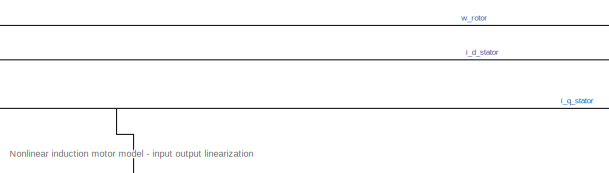
[diagram: root canvas - part 1/3, top center region]
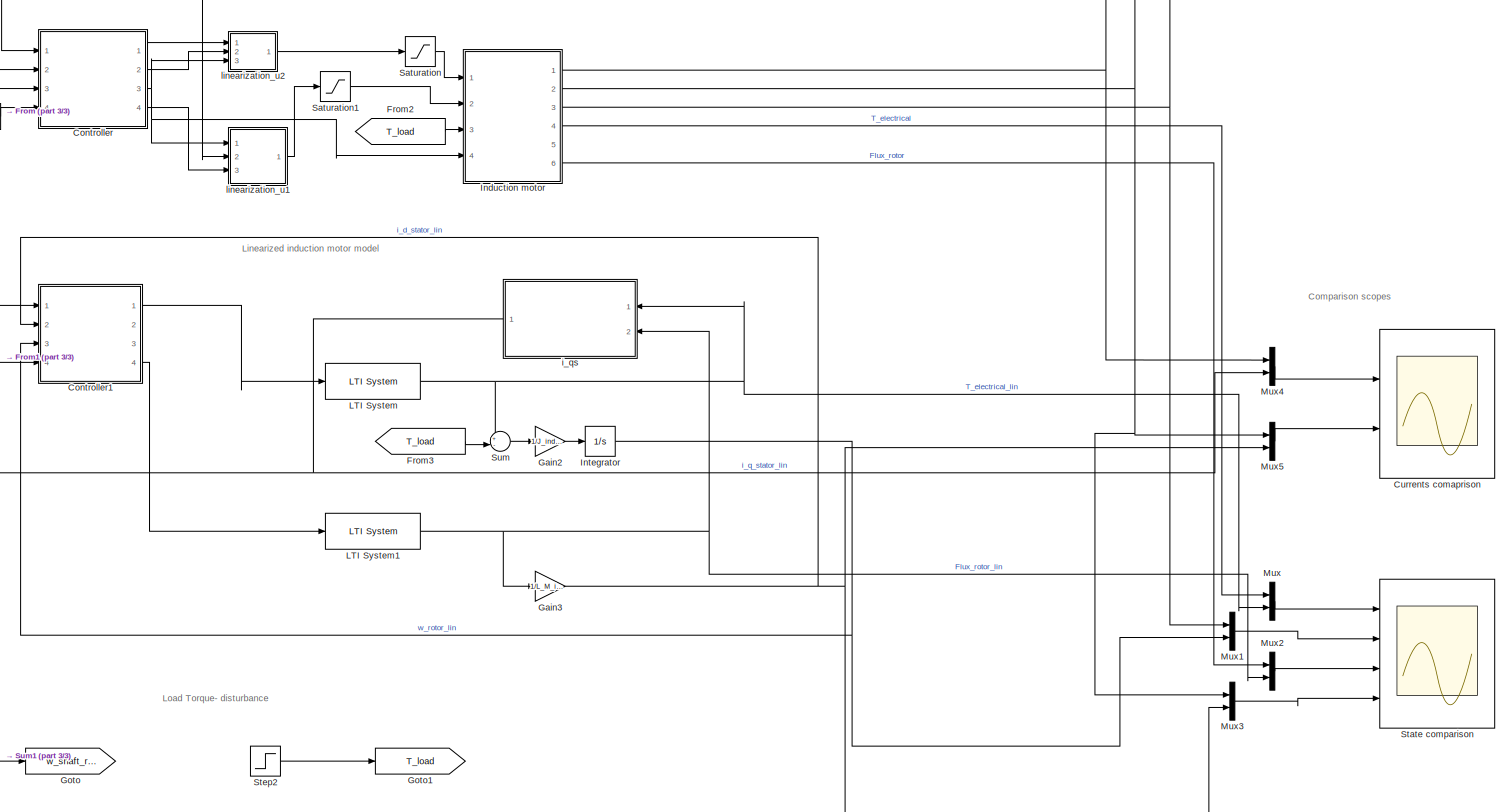
[diagram: root canvas - part 2/3, most of the canvas]
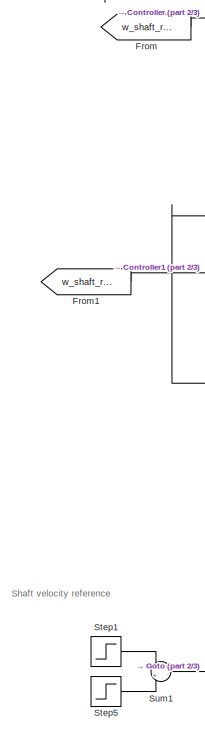
[diagram: root canvas - part 3/3, middle left region]
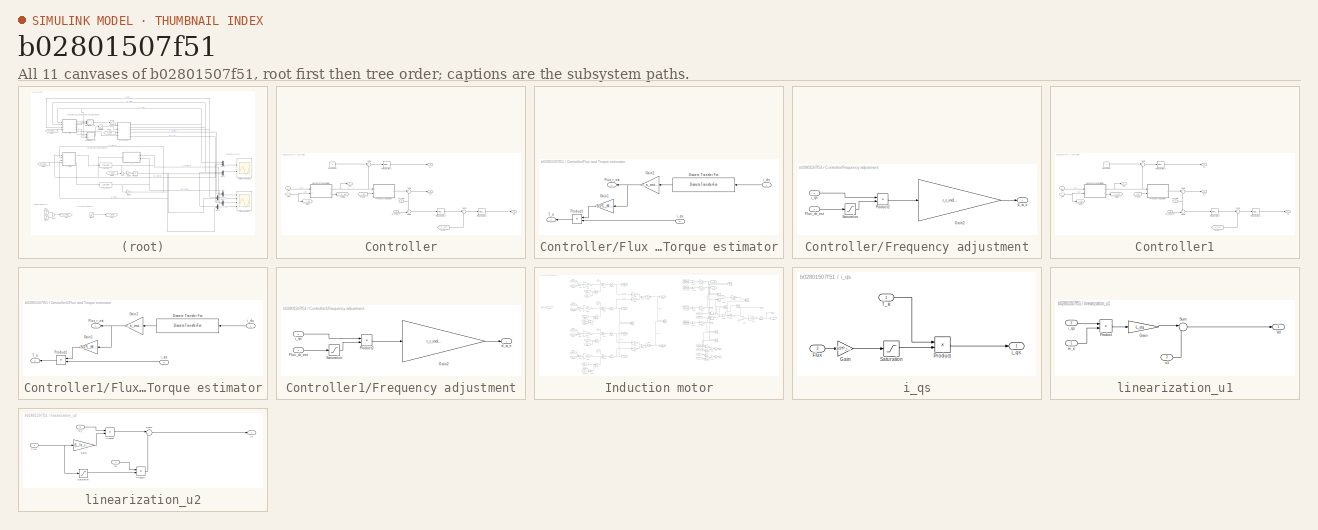
[diagram: thumbnail index - all 11 canvases of the model, root first then tree order]
MODEL slx_b02801507f51
KIND model
CONFIG AbsTol = auto
CONFIG EnableMultiTasking = off
CONFIG FixedStep = 1e-3
CONFIG MaxStep = auto
CONFIG MinStep = auto
CONFIG RelTol = 1e-3
CONFIG SampleTimeConstraint = Unconstrained
CONFIG Solver = FixedStepAuto
CONFIG SolverName = FixedStepAuto
CONFIG StartTime = 0.0
CONFIG StopTime = 200
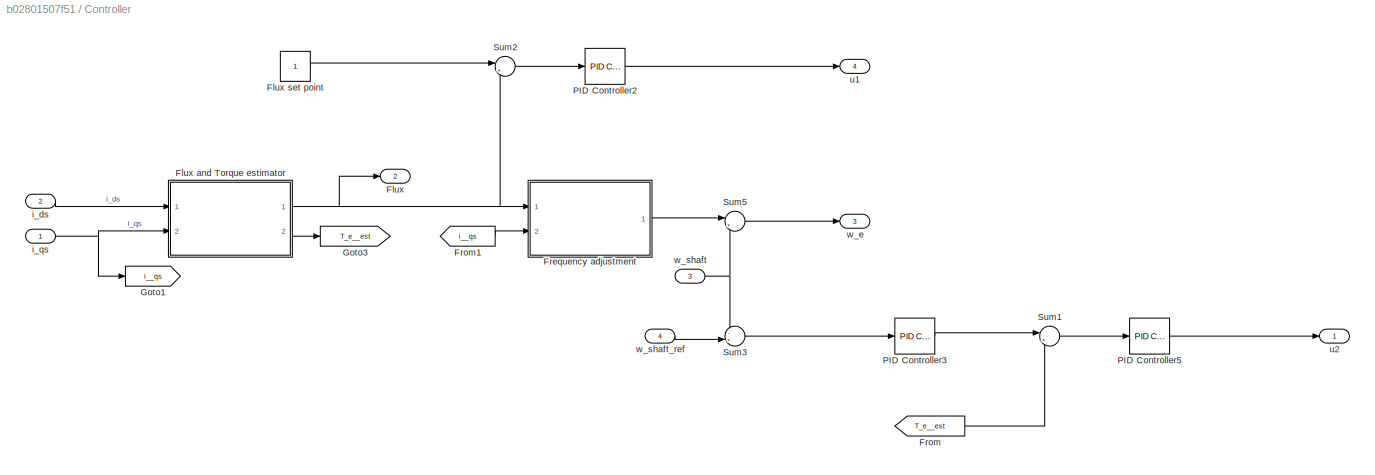
BLOCK [SubSystem] Controller
  Ports = [4, 4]
  RequestExecContextInheritance = off
  Variant = off
BLOCK [Outport] Controller/Flux
  IconDisplay = Port number
  Port = 2
BLOCK [SubSystem] Controller/Flux and Torque estimator
  Ports = [2, 2]
  RequestExecContextInheritance = off
  Variant = off
BLOCK [DiscreteTransferFcn] Controller/Flux and Torque estimator/Discrete Transfer Fcn
  Denominator = [(2*T_r_ind+T_s_est) (T_s_est-2*T_r_ind)]
  InputPortMap = u0
  Numerator = [1 1]
  Ports = [1, 1]
  SampleTime = T_s_est
BLOCK [Outport] Controller/Flux and Torque estimator/Flux_r_est
  IconDisplay = Port number
BLOCK [Gain] Controller/Flux and Torque estimator/Gain1
  Gain = 3/2*L_M_ind/L_lr_ind*P_ind
  OutDataTypeStr = Inherit: Inherit via internal rule
  ParamDataTypeStr = Inherit: Inherit via internal rule
  SaturateOnIntegerOverflow = off
BLOCK [Gain] Controller/Flux and Torque estimator/Gain2
  Gain = T_s_est*L_M_ind
  OutDataTypeStr = Inherit: Inherit via internal rule
  ParamDataTypeStr = Inherit: Inherit via internal rule
  SaturateOnIntegerOverflow = off
BLOCK [Product] Controller/Flux and Torque estimator/Product1
  InputSameDT = off
  OutDataTypeStr = Inherit: Inherit via internal rule
  Ports = [2, 1]
  RndMeth = Floor
  SaturateOnIntegerOverflow = off
BLOCK [Outport] Controller/Flux and Torque estimator/T_e
  IconDisplay = Port number
  Port = 2
BLOCK [Inport] Controller/Flux and Torque estimator/i_ds
  IconDisplay = Port number
BLOCK [Inport] Controller/Flux and Torque estimator/i_qs
  IconDisplay = Port number
  Port = 2
BLOCK [Constant] Controller/Flux set point
BLOCK [SubSystem] Controller/Frequency adjustment
  Ports = [2, 1]
  RequestExecContextInheritance = off
  Variant = off
BLOCK [Inport] Controller/Frequency adjustment/Flux_dr_est
  IconDisplay = Port number
BLOCK [Gain] Controller/Frequency adjustment/Gain2
  Gain = r_r_ind*L_M_ind/(L_M_ind+L_lr_ind)
  OutDataTypeStr = Inherit: Inherit via internal rule
  ParamDataTypeStr = Inherit: Inherit via internal rule
  SaturateOnIntegerOverflow = off
BLOCK [Product] Controller/Frequency adjustment/Product2
  InputSameDT = off
  Inputs = */
  OutDataTypeStr = Inherit: Inherit via internal rule
  Ports = [2, 1]
  RndMeth = Floor
  SaturateOnIntegerOverflow = off
BLOCK [Saturate] Controller/Frequency adjustment/Saturation
  InputPortMap = u0
  LowerLimit = 1e-5
  Ports = [1, 1]
  UpperLimit = inf
BLOCK [Outport] Controller/Frequency adjustment/d_w_e
  IconDisplay = Port number
BLOCK [Inport] Controller/Frequency adjustment/i_qs
  IconDisplay = Port number
  Port = 2
BLOCK [From] Controller/From
  GotoTag = T_e__est
BLOCK [From] Controller/From1
  GotoTag = i__qs
BLOCK [Goto] Controller/Goto1
  GotoTag = i__qs
BLOCK [Goto] Controller/Goto3
  GotoTag = T_e__est
BLOCK [Reference] Controller/PID Controller2  REF=simulink/Continuous/PID Controller
  Ports = [1, 1]
  SourceBlock = simulink/Continuous/PID Controller
  SourceProductBaseCode = SL
  SourceProductName = Simulink
  SourceType = PID 1dof
BLOCK [Reference] Controller/PID Controller3  REF=simulink/Continuous/PID Controller
  Ports = [1, 1]
  SourceBlock = simulink/Continuous/PID Controller
  SourceProductBaseCode = SL
  SourceProductName = Simulink
  SourceType = PID 1dof
BLOCK [Reference] Controller/PID Controller5  REF=simulink/Continuous/PID Controller
  Ports = [1, 1]
  SourceBlock = simulink/Continuous/PID Controller
  SourceProductBaseCode = SL
  SourceProductName = Simulink
  SourceType = PID 1dof
BLOCK [Sum] Controller/Sum1
  IconShape = round
  InputSameDT = off
  Inputs = |+-
  OutDataTypeStr = Inherit: Inherit via internal rule
  Ports = [2, 1]
  SaturateOnIntegerOverflow = off
BLOCK [Sum] Controller/Sum2
  IconShape = round
  InputSameDT = off
  Inputs = |+-
  OutDataTypeStr = Inherit: Inherit via internal rule
  Ports = [2, 1]
  SaturateOnIntegerOverflow = off
BLOCK [Sum] Controller/Sum3
  IconShape = round
  InputSameDT = off
  Inputs = -+|
  OutDataTypeStr = Inherit: Inherit via internal rule
  Ports = [2, 1]
  SaturateOnIntegerOverflow = off
BLOCK [Sum] Controller/Sum5
  IconShape = round
  InputSameDT = off
  Inputs = |++
  OutDataTypeStr = Inherit: Inherit via internal rule
  Ports = [2, 1]
  SaturateOnIntegerOverflow = off
BLOCK [Inport] Controller/i_ds
  IconDisplay = Port number
  Port = 2
BLOCK [Inport] Controller/i_qs
  IconDisplay = Port number
BLOCK [Outport] Controller/u1
  IconDisplay = Port number
  Port = 4
BLOCK [Outport] Controller/u2
  IconDisplay = Port number
BLOCK [Outport] Controller/w_e
  IconDisplay = Port number
  Port = 3
BLOCK [Inport] Controller/w_shaft
  IconDisplay = Port number
  Port = 3
BLOCK [Inport] Controller/w_shaft_ref
  IconDisplay = Port number
  Port = 4
BLOCK [SubSystem] Controller1
  Ports = [4, 4]
  RequestExecContextInheritance = off
  Variant = off
BLOCK [Outport] Controller1/Flux
  IconDisplay = Port number
  Port = 2
BLOCK [SubSystem] Controller1/Flux and Torque estimator
  Ports = [2, 2]
  RequestExecContextInheritance = off
  Variant = off
BLOCK [DiscreteTransferFcn] Controller1/Flux and Torque estimator/Discrete Transfer Fcn
  Denominator = [(2*T_r_ind+T_s_est) (T_s_est-2*T_r_ind)]
  InputPortMap = u0
  Numerator = [1 1]
  Ports = [1, 1]
  SampleTime = T_s_est
BLOCK [Outport] Controller1/Flux and Torque estimator/Flux_r_est
  IconDisplay = Port number
BLOCK [Gain] Controller1/Flux and Torque estimator/Gain1
  Gain = 3/2*L_M_ind/L_lr_ind*P_ind
  OutDataTypeStr = Inherit: Inherit via internal rule
  ParamDataTypeStr = Inherit: Inherit via internal rule
  SaturateOnIntegerOverflow = off
BLOCK [Gain] Controller1/Flux and Torque estimator/Gain2
  Gain = T_s_est*L_M_ind
  OutDataTypeStr = Inherit: Inherit via internal rule
  ParamDataTypeStr = Inherit: Inherit via internal rule
  SaturateOnIntegerOverflow = off
BLOCK [Product] Controller1/Flux and Torque estimator/Product1
  InputSameDT = off
  OutDataTypeStr = Inherit: Inherit via internal rule
  Ports = [2, 1]
  RndMeth = Floor
  SaturateOnIntegerOverflow = off
BLOCK [Outport] Controller1/Flux and Torque estimator/T_e
  IconDisplay = Port number
  Port = 2
BLOCK [Inport] Controller1/Flux and Torque estimator/i_ds
  IconDisplay = Port number
BLOCK [Inport] Controller1/Flux and Torque estimator/i_qs
  IconDisplay = Port number
  Port = 2
BLOCK [Constant] Controller1/Flux set point
BLOCK [SubSystem] Controller1/Frequency adjustment
  Ports = [2, 1]
  RequestExecContextInheritance = off
  Variant = off
BLOCK [Inport] Controller1/Frequency adjustment/Flux_dr_est
  IconDisplay = Port number
BLOCK [Gain] Controller1/Frequency adjustment/Gain2
  Gain = r_r_ind*L_M_ind/(L_M_ind+L_lr_ind)
  OutDataTypeStr = Inherit: Inherit via internal rule
  ParamDataTypeStr = Inherit: Inherit via internal rule
  SaturateOnIntegerOverflow = off
BLOCK [Product] Controller1/Frequency adjustment/Product2
  InputSameDT = off
  Inputs = */
  OutDataTypeStr = Inherit: Inherit via internal rule
  Ports = [2, 1]
  RndMeth = Floor
  SaturateOnIntegerOverflow = off
BLOCK [Saturate] Controller1/Frequency adjustment/Saturation
  InputPortMap = u0
  LowerLimit = 1e-5
  Ports = [1, 1]
  UpperLimit = inf
BLOCK [Outport] Controller1/Frequency adjustment/d_w_e
  IconDisplay = Port number
BLOCK [Inport] Controller1/Frequency adjustment/i_qs
  IconDisplay = Port number
  Port = 2
BLOCK [From] Controller1/From
  GotoTag = T_e_est
BLOCK [From] Controller1/From1
  GotoTag = i_qs
BLOCK [Goto] Controller1/Goto1
  GotoTag = i_qs
BLOCK [Goto] Controller1/Goto3
  GotoTag = T_e_est
BLOCK [Reference] Controller1/PID Controller2  REF=simulink/Continuous/PID Controller
  Ports = [1, 1]
  SourceBlock = simulink/Continuous/PID Controller
  SourceProductBaseCode = SL
  SourceProductName = Simulink
  SourceType = PID 1dof
BLOCK [Reference] Controller1/PID Controller3  REF=simulink/Continuous/PID Controller
  Ports = [1, 1]
  SourceBlock = simulink/Continuous/PID Controller
  SourceProductBaseCode = SL
  SourceProductName = Simulink
  SourceType = PID 1dof
BLOCK [Reference] Controller1/PID Controller5  REF=simulink/Continuous/PID Controller
  Ports = [1, 1]
  SourceBlock = simulink/Continuous/PID Controller
  SourceProductBaseCode = SL
  SourceProductName = Simulink
  SourceType = PID 1dof
BLOCK [Sum] Controller1/Sum1
  IconShape = round
  InputSameDT = off
  Inputs = |+-
  OutDataTypeStr = Inherit: Inherit via internal rule
  Ports = [2, 1]
  SaturateOnIntegerOverflow = off
BLOCK [Sum] Controller1/Sum2
  IconShape = round
  InputSameDT = off
  Inputs = |+-
  OutDataTypeStr = Inherit: Inherit via internal rule
  Ports = [2, 1]
  SaturateOnIntegerOverflow = off
BLOCK [Sum] Controller1/Sum3
  IconShape = round
  InputSameDT = off
  Inputs = -+|
  OutDataTypeStr = Inherit: Inherit via internal rule
  Ports = [2, 1]
  SaturateOnIntegerOverflow = off
BLOCK [Sum] Controller1/Sum5
  IconShape = round
  InputSameDT = off
  Inputs = |++
  OutDataTypeStr = Inherit: Inherit via internal rule
  Ports = [2, 1]
  SaturateOnIntegerOverflow = off
BLOCK [Inport] Controller1/i_ds
  IconDisplay = Port number
  Port = 2
BLOCK [Inport] Controller1/i_qs
  IconDisplay = Port number
BLOCK [Outport] Controller1/u1
  IconDisplay = Port number
  Port = 4
BLOCK [Outport] Controller1/u2
  IconDisplay = Port number
BLOCK [Outport] Controller1/w_e
  IconDisplay = Port number
  Port = 3
BLOCK [Inport] Controller1/w_shaft
  IconDisplay = Port number
  Port = 3
BLOCK [Inport] Controller1/w_shaft_ref
  IconDisplay = Port number
  Port = 4
BLOCK [Scope] Currents comaprison
  NumInputPorts = 2
  Ports = [2]
  ScopeSpecificationString = Simulink.scopes.TimeScopeBlockCfg('CurrentConfiguration', extmgr.ConfigurationSet(extmgr.Configuration('Core','General UI',true),extmgr.Configuration('Core','Source UI',true),extmgr.Configuration('Sources','WiredSimulink',true),extmgr.Configuration('Visuals','Time Domain',true,'SerializedDisplays',{struct('MinYLimReal','-2.41881','MaxYLimReal','17.90524','YLabelReal','','MinYLimMag','0.00000','Max...<+2008ch>
BLOCK [From] From
  GotoTag = w_shaft_ref
BLOCK [From] From1
  GotoTag = w_shaft_ref
BLOCK [From] From2
  GotoTag = T_load
BLOCK [From] From3
  GotoTag = T_load
BLOCK [Gain] Gain2
  Gain = 1/J_ind*P_ind/2
  OutDataTypeStr = Inherit: Inherit via internal rule
  ParamDataTypeStr = Inherit: Inherit via internal rule
  SaturateOnIntegerOverflow = off
BLOCK [Gain] Gain3
  Gain = 1/L_M_ind
  OutDataTypeStr = Inherit: Inherit via internal rule
  ParamDataTypeStr = Inherit: Inherit via internal rule
  SaturateOnIntegerOverflow = off
BLOCK [Goto] Goto
  GotoTag = w_shaft_ref
BLOCK [Goto] Goto1
  GotoTag = T_load
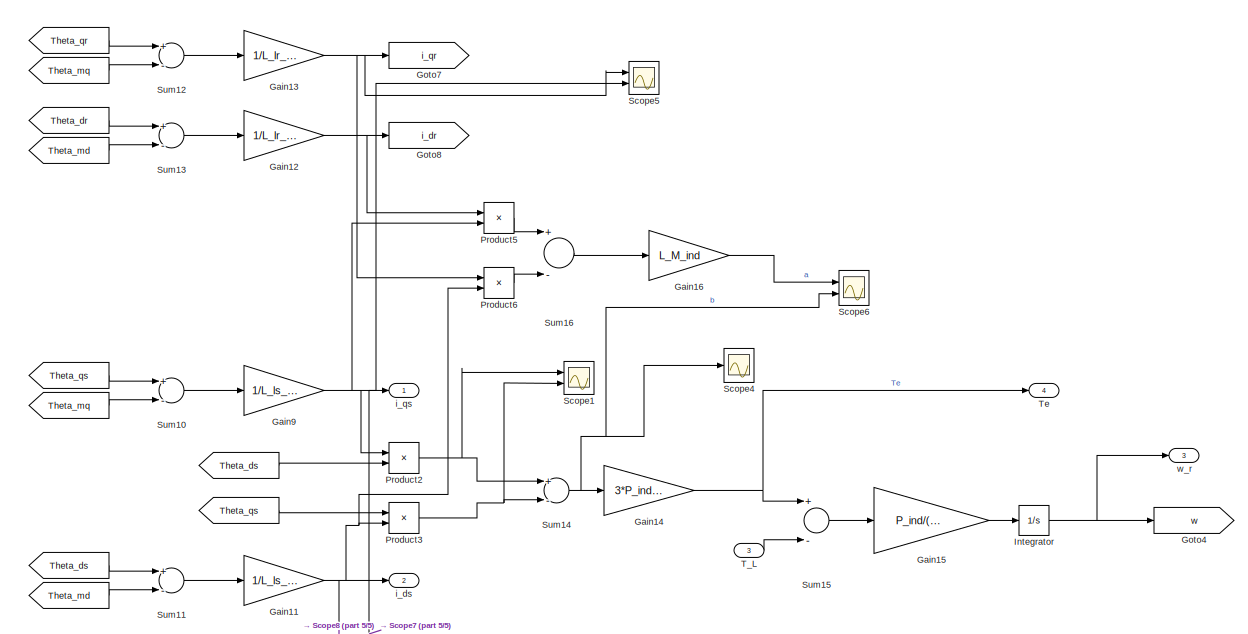
[diagram: Induction motor - part 1/5, top right region]
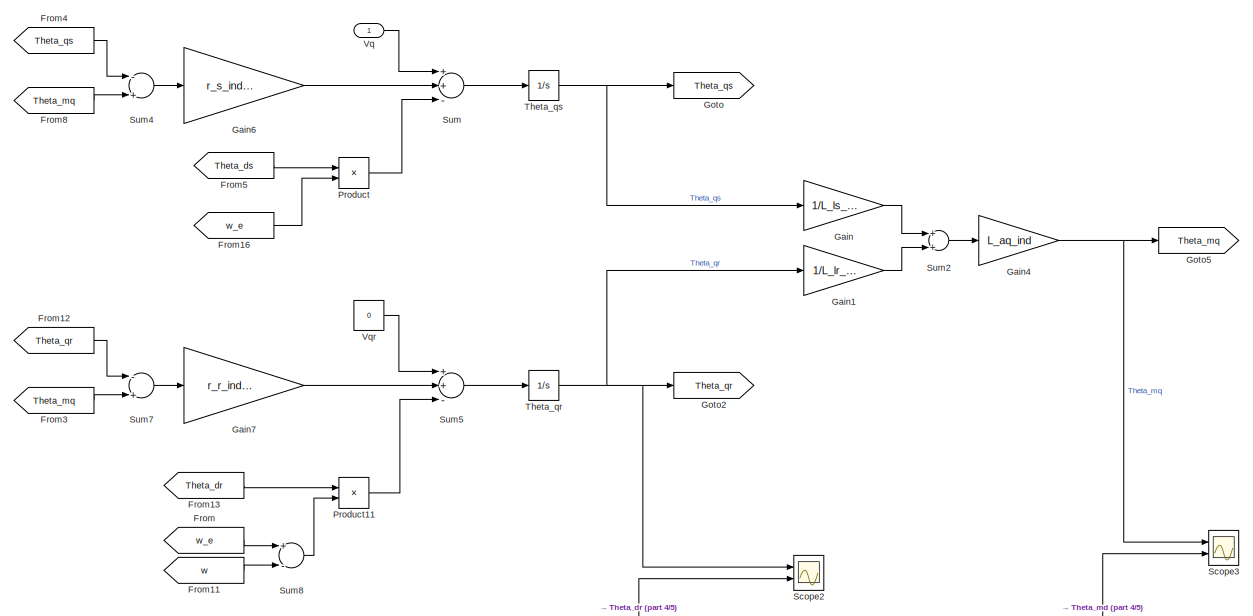
[diagram: Induction motor - part 2/5, top left region]
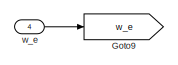
[diagram: Induction motor - part 3/5, top left region]
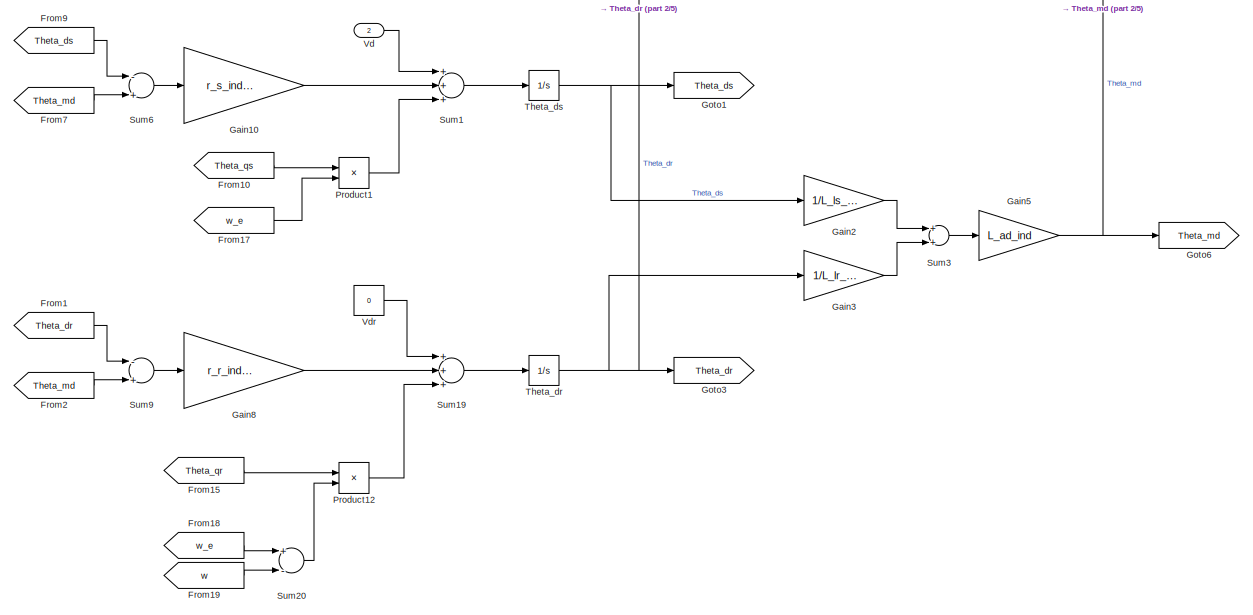
[diagram: Induction motor - part 4/5, bottom left region]
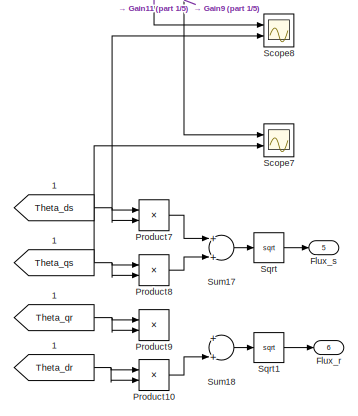
[diagram: Induction motor - part 5/5, bottom right region]
BLOCK [SubSystem] Induction motor
  Ports = [4, 6]
  RequestExecContextInheritance = off
  Variant = off
BLOCK [From] Induction motor/ 
  GotoTag = Theta_ds
BLOCK [From] Induction motor/  
  GotoTag = Theta_mq
BLOCK [From] Induction motor/   
  GotoTag = Theta_qs
BLOCK [From] Induction motor/    
  GotoTag = Theta_dr
BLOCK [From] Induction motor/     
  GotoTag = Theta_md
BLOCK [From] Induction motor/         
  GotoTag = Theta_md
BLOCK [From] Induction motor/          
  GotoTag = Theta_qr
BLOCK [From] Induction motor/            
  GotoTag = Theta_mq
BLOCK [From] Induction motor/                   
  GotoTag = Theta_qs
BLOCK [From] Induction motor/                         
  GotoTag = Theta_ds
BLOCK [From] Induction motor/          1
  GotoTag = Theta_qr
BLOCK [From] Induction motor/    1
  GotoTag = Theta_dr
BLOCK [From] Induction motor/   1
  GotoTag = Theta_qs
BLOCK [From] Induction motor/ 1
  GotoTag = Theta_ds
BLOCK [Outport] Induction motor/Flux_r
  IconDisplay = Port number
  Port = 6
BLOCK [Outport] Induction motor/Flux_s
  IconDisplay = Port number
  Port = 5
BLOCK [From] Induction motor/From
  GotoTag = w_e
BLOCK [From] Induction motor/From1
  GotoTag = Theta_dr
BLOCK [From] Induction motor/From10
  GotoTag = Theta_qs
BLOCK [From] Induction motor/From11
  GotoTag = w
BLOCK [From] Induction motor/From12
  GotoTag = Theta_qr
BLOCK [From] Induction motor/From13
  GotoTag = Theta_dr
BLOCK [From] Induction motor/From15
  GotoTag = Theta_qr
BLOCK [From] Induction motor/From16
  GotoTag = w_e
BLOCK [From] Induction motor/From17
  GotoTag = w_e
BLOCK [From] Induction motor/From18
  GotoTag = w_e
BLOCK [From] Induction motor/From19
  GotoTag = w
BLOCK [From] Induction motor/From2
  GotoTag = Theta_md
BLOCK [From] Induction motor/From3
  GotoTag = Theta_mq
BLOCK [From] Induction motor/From4
  GotoTag = Theta_qs
BLOCK [From] Induction motor/From5
  GotoTag = Theta_ds
BLOCK [From] Induction motor/From7
  GotoTag = Theta_md
BLOCK [From] Induction motor/From8
  GotoTag = Theta_mq
BLOCK [From] Induction motor/From9
  GotoTag = Theta_ds
BLOCK [Gain] Induction motor/Gain
  Gain = 1/L_ls_ind
  OutDataTypeStr = Inherit: Inherit via internal rule
  ParamDataTypeStr = Inherit: Inherit via internal rule
  SaturateOnIntegerOverflow = off
BLOCK [Gain] Induction motor/Gain1
  Gain = 1/L_lr_ind
  OutDataTypeStr = Inherit: Inherit via internal rule
  ParamDataTypeStr = Inherit: Inherit via internal rule
  SaturateOnIntegerOverflow = off
BLOCK [Gain] Induction motor/Gain10
  Gain = r_s_ind/L_ls_ind
  OutDataTypeStr = Inherit: Inherit via internal rule
  ParamDataTypeStr = Inherit: Inherit via internal rule
  SaturateOnIntegerOverflow = off
BLOCK [Gain] Induction motor/Gain11
  Gain = 1/L_ls_ind
  OutDataTypeStr = Inherit: Inherit via internal rule
  ParamDataTypeStr = Inherit: Inherit via internal rule
  SaturateOnIntegerOverflow = off
BLOCK [Gain] Induction motor/Gain12
  Gain = 1/L_lr_ind
  OutDataTypeStr = Inherit: Inherit via internal rule
  ParamDataTypeStr = Inherit: Inherit via internal rule
  SaturateOnIntegerOverflow = off
BLOCK [Gain] Induction motor/Gain13
  Gain = 1/L_lr_ind
  OutDataTypeStr = Inherit: Inherit via internal rule
  ParamDataTypeStr = Inherit: Inherit via internal rule
  SaturateOnIntegerOverflow = off
BLOCK [Gain] Induction motor/Gain14
  Gain = 3*P_ind/4
  OutDataTypeStr = Inherit: Inherit via internal rule
  ParamDataTypeStr = Inherit: Inherit via internal rule
  SaturateOnIntegerOverflow = off
BLOCK [Gain] Induction motor/Gain15
  Gain = P_ind/(2*J_ind)
  OutDataTypeStr = Inherit: Inherit via internal rule
  ParamDataTypeStr = Inherit: Inherit via internal rule
  SaturateOnIntegerOverflow = off
BLOCK [Gain] Induction motor/Gain16
  Gain = L_M_ind
  OutDataTypeStr = Inherit: Inherit via internal rule
  ParamDataTypeStr = Inherit: Inherit via internal rule
  SaturateOnIntegerOverflow = off
BLOCK [Gain] Induction motor/Gain2
  Gain = 1/L_ls_ind
  OutDataTypeStr = Inherit: Inherit via internal rule
  ParamDataTypeStr = Inherit: Inherit via internal rule
  SaturateOnIntegerOverflow = off
BLOCK [Gain] Induction motor/Gain3
  Gain = 1/L_lr_ind
  OutDataTypeStr = Inherit: Inherit via internal rule
  ParamDataTypeStr = Inherit: Inherit via internal rule
  SaturateOnIntegerOverflow = off
BLOCK [Gain] Induction motor/Gain4
  Gain = L_aq_ind
  OutDataTypeStr = Inherit: Inherit via internal rule
  ParamDataTypeStr = Inherit: Inherit via internal rule
  SaturateOnIntegerOverflow = off
BLOCK [Gain] Induction motor/Gain5
  Gain = L_ad_ind
  OutDataTypeStr = Inherit: Inherit via internal rule
  ParamDataTypeStr = Inherit: Inherit via internal rule
  SaturateOnIntegerOverflow = off
BLOCK [Gain] Induction motor/Gain6
  Gain = r_s_ind/L_ls_ind
  OutDataTypeStr = Inherit: Inherit via internal rule
  ParamDataTypeStr = Inherit: Inherit via internal rule
  SaturateOnIntegerOverflow = off
BLOCK [Gain] Induction motor/Gain7
  Gain = r_r_ind/L_lr_ind
  OutDataTypeStr = Inherit: Inherit via internal rule
  ParamDataTypeStr = Inherit: Inherit via internal rule
  SaturateOnIntegerOverflow = off
BLOCK [Gain] Induction motor/Gain8
  Gain = r_r_ind/L_lr_ind
  OutDataTypeStr = Inherit: Inherit via internal rule
  ParamDataTypeStr = Inherit: Inherit via internal rule
  SaturateOnIntegerOverflow = off
BLOCK [Gain] Induction motor/Gain9
  Gain = 1/L_ls_ind
  OutDataTypeStr = Inherit: Inherit via internal rule
  ParamDataTypeStr = Inherit: Inherit via internal rule
  SaturateOnIntegerOverflow = off
BLOCK [Goto] Induction motor/Goto
  GotoTag = Theta_qs
BLOCK [Goto] Induction motor/Goto1
  GotoTag = Theta_ds
BLOCK [Goto] Induction motor/Goto2
  GotoTag = Theta_qr
BLOCK [Goto] Induction motor/Goto3
  GotoTag = Theta_dr
BLOCK [Goto] Induction motor/Goto4
  GotoTag = w
BLOCK [Goto] Induction motor/Goto5
  GotoTag = Theta_mq
BLOCK [Goto] Induction motor/Goto6
  GotoTag = Theta_md
BLOCK [Goto] Induction motor/Goto7
  GotoTag = i_qr
BLOCK [Goto] Induction motor/Goto8
  GotoTag = i_dr
BLOCK [Goto] Induction motor/Goto9
  GotoTag = w_e
BLOCK [Integrator] Induction motor/Integrator
  Ports = [1, 1]
BLOCK [Product] Induction motor/Product
  InputSameDT = off
  OutDataTypeStr = Inherit: Inherit via internal rule
  Ports = [2, 1]
  RndMeth = Floor
  SaturateOnIntegerOverflow = off
BLOCK [Product] Induction motor/Product1
  InputSameDT = off
  OutDataTypeStr = Inherit: Inherit via internal rule
  Ports = [2, 1]
  RndMeth = Floor
  SaturateOnIntegerOverflow = off
BLOCK [Product] Induction motor/Product10
  InputSameDT = off
  OutDataTypeStr = Inherit: Inherit via internal rule
  Ports = [2, 1]
  RndMeth = Floor
  SaturateOnIntegerOverflow = off
BLOCK [Product] Induction motor/Product11
  InputSameDT = off
  OutDataTypeStr = Inherit: Inherit via internal rule
  Ports = [2, 1]
  RndMeth = Floor
  SaturateOnIntegerOverflow = off
BLOCK [Product] Induction motor/Product12
  InputSameDT = off
  OutDataTypeStr = Inherit: Inherit via internal rule
  Ports = [2, 1]
  RndMeth = Floor
  SaturateOnIntegerOverflow = off
BLOCK [Product] Induction motor/Product2
  InputSameDT = off
  OutDataTypeStr = Inherit: Inherit via internal rule
  Ports = [2, 1]
  RndMeth = Floor
  SaturateOnIntegerOverflow = off
BLOCK [Product] Induction motor/Product3
  InputSameDT = off
  OutDataTypeStr = Inherit: Inherit via internal rule
  Ports = [2, 1]
  RndMeth = Floor
  SaturateOnIntegerOverflow = off
BLOCK [Product] Induction motor/Product5
  InputSameDT = off
  OutDataTypeStr = Inherit: Inherit via internal rule
  Ports = [2, 1]
  RndMeth = Floor
  SaturateOnIntegerOverflow = off
BLOCK [Product] Induction motor/Product6
  InputSameDT = off
  OutDataTypeStr = Inherit: Inherit via internal rule
  Ports = [2, 1]
  RndMeth = Floor
  SaturateOnIntegerOverflow = off
BLOCK [Product] Induction motor/Product7
  InputSameDT = off
  OutDataTypeStr = Inherit: Inherit via internal rule
  Ports = [2, 1]
  RndMeth = Floor
  SaturateOnIntegerOverflow = off
BLOCK [Product] Induction motor/Product8
  InputSameDT = off
  OutDataTypeStr = Inherit: Inherit via internal rule
  Ports = [2, 1]
  RndMeth = Floor
  SaturateOnIntegerOverflow = off
BLOCK [Product] Induction motor/Product9
  InputSameDT = off
  OutDataTypeStr = Inherit: Inherit via internal rule
  Ports = [2, 1]
  RndMeth = Floor
  SaturateOnIntegerOverflow = off
BLOCK [Scope] Induction motor/Scope1
  NumInputPorts = 2
  Ports = [2]
  ScopeSpecificationString = Simulink.scopes.TimeScopeBlockCfg('CurrentConfiguration', extmgr.ConfigurationSet(extmgr.Configuration('Core','General UI',true),extmgr.Configuration('Core','Source UI',true),extmgr.Configuration('Sources','WiredSimulink',true,'DataLoggingVariableName','ScopeData4'),extmgr.Configuration('Visuals','Time Domain',true,'SerializedDisplays',{struct('MinYLimReal','-1215.52055','MaxYLimReal','9002.37036'...<+1508ch>
BLOCK [Scope] Induction motor/Scope2
  NumInputPorts = 2
  Ports = [2]
  ScopeSpecificationString = Simulink.scopes.TimeScopeBlockCfg('CurrentConfiguration', extmgr.ConfigurationSet(extmgr.Configuration('Core','General UI',true),extmgr.Configuration('Core','Source UI',true),extmgr.Configuration('Sources','WiredSimulink',true,'DataLoggingVariableName','ScopeData1'),extmgr.Configuration('Visuals','Time Domain',true,'SerializedDisplays',{struct('MinYLimReal','-0.58238','MaxYLimReal','1.26036','YLab...<+2044ch>
BLOCK [Scope] Induction motor/Scope3
  NumInputPorts = 2
  Ports = [2]
  ScopeSpecificationString = Simulink.scopes.TimeScopeBlockCfg('CurrentConfiguration', extmgr.ConfigurationSet(extmgr.Configuration('Core','General UI',true),extmgr.Configuration('Core','Source UI',true),extmgr.Configuration('Sources','WiredSimulink',true,'DataLoggingVariableName','ScopeData5'),extmgr.Configuration('Visuals','Time Domain',true,'SerializedDisplays',{struct('MinYLimReal','-0.88342','MaxYLimReal','4.88418','YLab...<+2046ch>
BLOCK [Scope] Induction motor/Scope4
  NumInputPorts = 1
  Ports = [1]
  ScopeSpecificationString = Simulink.scopes.TimeScopeBlockCfg('CurrentConfiguration', extmgr.ConfigurationSet(extmgr.Configuration('Core','General UI',true),extmgr.Configuration('Core','Source UI',true),extmgr.Configuration('Sources','WiredSimulink',true,'DataLoggingVariableName','ScopeData7'),extmgr.Configuration('Visuals','Time Domain',true,'SerializedDisplays',{struct('MinYLimReal','-150.19185','MaxYLimReal','262.26146','...<+1460ch>
BLOCK [Scope] Induction motor/Scope5
  NumInputPorts = 2
  Ports = [2]
  ScopeSpecificationString = Simulink.scopes.TimeScopeBlockCfg('CurrentConfiguration', extmgr.ConfigurationSet(extmgr.Configuration('Core','General UI',true),extmgr.Configuration('Core','Source UI',true),extmgr.Configuration('Sources','WiredSimulink',true,'DataLoggingVariableName','ScopeData4'),extmgr.Configuration('Visuals','Time Domain',true,'SerializedDisplays',{struct('MinYLimReal','-484.17036','MaxYLimReal','517.88619','...<+1458ch>
BLOCK [Scope] Induction motor/Scope6
  NumInputPorts = 2
  Ports = [2]
  ScopeSpecificationString = Simulink.scopes.TimeScopeBlockCfg('CurrentConfiguration', extmgr.ConfigurationSet(extmgr.Configuration('Core','General UI',true),extmgr.Configuration('Core','Source UI',true),extmgr.Configuration('Sources','WiredSimulink',true,'DataLoggingVariableName','ScopeData9'),extmgr.Configuration('Visuals','Time Domain',true,'SerializedDisplays',{struct('MinYLimReal','-150.19185','MaxYLimReal','262.26146','...<+1470ch>
BLOCK [Scope] Induction motor/Scope7
  NumInputPorts = 2
  Ports = [2]
  ScopeSpecificationString = Simulink.scopes.TimeScopeBlockCfg('CurrentConfiguration', extmgr.ConfigurationSet(extmgr.Configuration('Core','General UI',true),extmgr.Configuration('Core','Source UI',true),extmgr.Configuration('Sources','WiredSimulink',true,'DataLoggingVariableName','ScopeData5'),extmgr.Configuration('Visuals','Time Domain',true,'SerializedDisplays',{struct('MinYLimReal','-22.67517','MaxYLimReal','13.12392','YL...<+2113ch>
BLOCK [Scope] Induction motor/Scope8
  NumInputPorts = 2
  Ports = [2]
  ScopeSpecificationString = Simulink.scopes.TimeScopeBlockCfg('CurrentConfiguration', extmgr.ConfigurationSet(extmgr.Configuration('Core','General UI',true),extmgr.Configuration('Core','Source UI',true),extmgr.Configuration('Sources','WiredSimulink',true,'DataLoggingVariableName','ScopeData6'),extmgr.Configuration('Visuals','Time Domain',true,'SerializedDisplays',{struct('MinYLimReal','-32.89474','MaxYLimReal','296.05263','Y...<+2092ch>
BLOCK [Sqrt] Induction motor/Sqrt
BLOCK [Sqrt] Induction motor/Sqrt1
BLOCK [Sum] Induction motor/Sum
  InputSameDT = off
  Inputs = ++-
  OutDataTypeStr = Inherit: Inherit via internal rule
  Ports = [3, 1]
  SaturateOnIntegerOverflow = off
BLOCK [Sum] Induction motor/Sum1
  InputSameDT = off
  Inputs = +++
  OutDataTypeStr = Inherit: Inherit via internal rule
  Ports = [3, 1]
  SaturateOnIntegerOverflow = off
BLOCK [Sum] Induction motor/Sum10
  InputSameDT = off
  Inputs = +-
  OutDataTypeStr = Inherit: Inherit via internal rule
  Ports = [2, 1]
  SaturateOnIntegerOverflow = off
BLOCK [Sum] Induction motor/Sum11
  InputSameDT = off
  Inputs = +-
  OutDataTypeStr = Inherit: Inherit via internal rule
  Ports = [2, 1]
  SaturateOnIntegerOverflow = off
BLOCK [Sum] Induction motor/Sum12
  InputSameDT = off
  Inputs = +-
  OutDataTypeStr = Inherit: Inherit via internal rule
  Ports = [2, 1]
  SaturateOnIntegerOverflow = off
BLOCK [Sum] Induction motor/Sum13
  InputSameDT = off
  Inputs = +-
  OutDataTypeStr = Inherit: Inherit via internal rule
  Ports = [2, 1]
  SaturateOnIntegerOverflow = off
BLOCK [Sum] Induction motor/Sum14
  InputSameDT = off
  Inputs = +-
  OutDataTypeStr = Inherit: Inherit via internal rule
  Ports = [2, 1]
  SaturateOnIntegerOverflow = off
BLOCK [Sum] Induction motor/Sum15
  InputSameDT = off
  Inputs = +-
  OutDataTypeStr = Inherit: Inherit via internal rule
  Ports = [2, 1]
  SaturateOnIntegerOverflow = off
BLOCK [Sum] Induction motor/Sum16
  InputSameDT = off
  Inputs = +-
  OutDataTypeStr = Inherit: Inherit via internal rule
  Ports = [2, 1]
  SaturateOnIntegerOverflow = off
BLOCK [Sum] Induction motor/Sum17
  InputSameDT = off
  OutDataTypeStr = Inherit: Inherit via internal rule
  Ports = [2, 1]
  SaturateOnIntegerOverflow = off
BLOCK [Sum] Induction motor/Sum18
  InputSameDT = off
  OutDataTypeStr = Inherit: Inherit via internal rule
  Ports = [2, 1]
  SaturateOnIntegerOverflow = off
BLOCK [Sum] Induction motor/Sum19
  InputSameDT = off
  Inputs = +++
  OutDataTypeStr = Inherit: Inherit via internal rule
  Ports = [3, 1]
  SaturateOnIntegerOverflow = off
BLOCK [Sum] Induction motor/Sum2
  InputSameDT = off
  OutDataTypeStr = Inherit: Inherit via internal rule
  Ports = [2, 1]
  SaturateOnIntegerOverflow = off
BLOCK [Sum] Induction motor/Sum20
  InputSameDT = off
  Inputs = +-
  OutDataTypeStr = Inherit: Inherit via internal rule
  Ports = [2, 1]
  SaturateOnIntegerOverflow = off
BLOCK [Sum] Induction motor/Sum3
  InputSameDT = off
  OutDataTypeStr = Inherit: Inherit via internal rule
  Ports = [2, 1]
  SaturateOnIntegerOverflow = off
BLOCK [Sum] Induction motor/Sum4
  InputSameDT = off
  Inputs = -+
  OutDataTypeStr = Inherit: Inherit via internal rule
  Ports = [2, 1]
  SaturateOnIntegerOverflow = off
BLOCK [Sum] Induction motor/Sum5
  InputSameDT = off
  Inputs = ++-
  OutDataTypeStr = Inherit: Inherit via internal rule
  Ports = [3, 1]
  SaturateOnIntegerOverflow = off
BLOCK [Sum] Induction motor/Sum6
  InputSameDT = off
  Inputs = -+
  OutDataTypeStr = Inherit: Inherit via internal rule
  Ports = [2, 1]
  SaturateOnIntegerOverflow = off
BLOCK [Sum] Induction motor/Sum7
  InputSameDT = off
  Inputs = -+
  OutDataTypeStr = Inherit: Inherit via internal rule
  Ports = [2, 1]
  SaturateOnIntegerOverflow = off
BLOCK [Sum] Induction motor/Sum8
  InputSameDT = off
  Inputs = +-
  OutDataTypeStr = Inherit: Inherit via internal rule
  Ports = [2, 1]
  SaturateOnIntegerOverflow = off
BLOCK [Sum] Induction motor/Sum9
  InputSameDT = off
  Inputs = -+
  OutDataTypeStr = Inherit: Inherit via internal rule
  Ports = [2, 1]
  SaturateOnIntegerOverflow = off
BLOCK [Inport] Induction motor/T_L
  IconDisplay = Port number
  Port = 3
BLOCK [Outport] Induction motor/Te
  IconDisplay = Port number
  Port = 4
BLOCK [Integrator] Induction motor/Theta_dr
  Ports = [1, 1]
BLOCK [Integrator] Induction motor/Theta_ds
  Ports = [1, 1]
BLOCK [Integrator] Induction motor/Theta_qr
  Ports = [1, 1]
BLOCK [Integrator] Induction motor/Theta_qs
  Ports = [1, 1]
BLOCK [Inport] Induction motor/Vd
  IconDisplay = Port number
  Port = 2
BLOCK [Constant] Induction motor/Vdr
  Value = 0
BLOCK [Inport] Induction motor/Vq
  IconDisplay = Port number
BLOCK [Constant] Induction motor/Vqr
  Value = 0
BLOCK [Outport] Induction motor/i_ds
  IconDisplay = Port number
  Port = 2
BLOCK [Outport] Induction motor/i_qs
  IconDisplay = Port number
BLOCK [Inport] Induction motor/w_e
  IconDisplay = Port number
  Port = 4
BLOCK [Outport] Induction motor/w_r
  IconDisplay = Port number
  Port = 3
BLOCK [Integrator] Integrator
  Ports = [1, 1]
BLOCK [Reference] LTI System  REF=cstblocks/LTI System
  Ports = [1, 1]
  SourceBlock = cstblocks/LTI System
  SourceProductBaseCode = CT
  SourceProductName = Control System Toolbox
  SourceType = LTI Block
BLOCK [Reference] LTI System1  REF=cstblocks/LTI System
  Ports = [1, 1]
  SourceBlock = cstblocks/LTI System
  SourceProductBaseCode = CT
  SourceProductName = Control System Toolbox
  SourceType = LTI Block
BLOCK [Mux] Mux
  DisplayOption = bar
  Inputs = 2
  Ports = [2, 1]
BLOCK [Mux] Mux1
  DisplayOption = bar
  Inputs = 2
  Ports = [2, 1]
BLOCK [Mux] Mux2
  DisplayOption = bar
  Inputs = 2
  Ports = [2, 1]
BLOCK [Mux] Mux3
  DisplayOption = bar
  Inputs = 2
  Ports = [2, 1]
BLOCK [Mux] Mux4
  DisplayOption = bar
  Inputs = 2
  Ports = [2, 1]
BLOCK [Mux] Mux5
  DisplayOption = bar
  Inputs = 2
  Ports = [2, 1]
BLOCK [Saturate] Saturation
  InputPortMap = u0
  LowerLimit = -500
  Ports = [1, 1]
  UpperLimit = 500
BLOCK [Saturate] Saturation1
  InputPortMap = u0
  LowerLimit = -500
  Ports = [1, 1]
  UpperLimit = 500
BLOCK [Scope] State comparison
  NumInputPorts = 4
  Ports = [4]
  ScopeSpecificationString = Simulink.scopes.TimeScopeBlockCfg('CurrentConfiguration', extmgr.ConfigurationSet(extmgr.Configuration('Core','General UI',true),extmgr.Configuration('Core','Source UI',true),extmgr.Configuration('Sources','WiredSimulink',true,'DataLoggingVariableName','ScopeData4'),extmgr.Configuration('Visuals','Time Domain',true,'SerializedDisplays',{struct('MinYLimReal','-1.84401','MaxYLimReal','13.75689','YLa...<+3543ch>
BLOCK [Step] Step1
  SampleTime = 0
  Time = 50
BLOCK [Step] Step2
  After = 10
  SampleTime = 0
  Time = 100
BLOCK [Step] Step5
  After = -2
  SampleTime = 0
  Time = 180
BLOCK [Sum] Sum
  IconShape = round
  InputSameDT = off
  Inputs = +-|
  OutDataTypeStr = Inherit: Inherit via internal rule
  Ports = [2, 1]
  SaturateOnIntegerOverflow = off
BLOCK [Sum] Sum1
  IconShape = round
  InputSameDT = off
  OutDataTypeStr = Inherit: Inherit via internal rule
  Ports = [2, 1]
  SaturateOnIntegerOverflow = off
BLOCK [SubSystem] i_qs
  Ports = [2, 1]
  RequestExecContextInheritance = off
  Variant = off
BLOCK [Inport] i_qs/Flux
  IconDisplay = Port number
  Port = 2
BLOCK [Gain] i_qs/Gain
  Gain = 3/2*P_ind/2*L_M_ind/(L_lr_ind+L_M_ind)
  OutDataTypeStr = Inherit: Inherit via internal rule
  ParamDataTypeStr = Inherit: Inherit via internal rule
  SaturateOnIntegerOverflow = off
BLOCK [Product] i_qs/Product
  InputSameDT = off
  Inputs = */
  OutDataTypeStr = Inherit: Inherit via internal rule
  Ports = [2, 1]
  RndMeth = Floor
  SaturateOnIntegerOverflow = off
BLOCK [Saturate] i_qs/Saturation
  InputPortMap = u0
  LowerLimit = 1e-5
  Ports = [1, 1]
  UpperLimit = inf
BLOCK [Inport] i_qs/T_e
  IconDisplay = Port number
BLOCK [Outport] i_qs/i_qs
  IconDisplay = Port number
BLOCK [SubSystem] linearization_u1
  Ports = [3, 1]
  RequestExecContextInheritance = off
  Variant = off
BLOCK [Gain] linearization_u1/Gain
  Gain = L_eq
  OutDataTypeStr = Inherit: Inherit via internal rule
  ParamDataTypeStr = Inherit: Inherit via internal rule
  SaturateOnIntegerOverflow = off
BLOCK [Product] linearization_u1/Product
  InputSameDT = off
  OutDataTypeStr = Inherit: Inherit via internal rule
  Ports = [2, 1]
  RndMeth = Floor
  SaturateOnIntegerOverflow = off
BLOCK [Sum] linearization_u1/Sum
  IconShape = round
  InputSameDT = off
  Inputs = |-+
  OutDataTypeStr = Inherit: Inherit via internal rule
  Ports = [2, 1]
  SaturateOnIntegerOverflow = off
BLOCK [Outport] linearization_u1/Vd
  IconDisplay = Port number
BLOCK [Inport] linearization_u1/i_qs
  IconDisplay = Port number
  Port = 2
BLOCK [Inport] linearization_u1/u1
  IconDisplay = Port number
  Port = 3
BLOCK [Inport] linearization_u1/w_e
  IconDisplay = Port number
BLOCK [SubSystem] linearization_u2
  Ports = [3, 1]
  RequestExecContextInheritance = off
  Variant = off
BLOCK [Inport] linearization_u2/Flux
  IconDisplay = Port number
  Port = 2
BLOCK [Gain] linearization_u2/Gain1
  Gain = (L_ls_ind+L_M_ind)/L_M_ind
  OutDataTypeStr = Inherit: Inherit via internal rule
  ParamDataTypeStr = Inherit: Inherit via internal rule
  SaturateOnIntegerOverflow = off
BLOCK [Product] linearization_u2/Product
  InputSameDT = off
  OutDataTypeStr = Inherit: Inherit via internal rule
  Ports = [2, 1]
  RndMeth = Floor
  SaturateOnIntegerOverflow = off
BLOCK [Product] linearization_u2/Product1
  InputSameDT = off
  Inputs = */
  OutDataTypeStr = Inherit: Inherit via internal rule
  Ports = [2, 1]
  RndMeth = Floor
  SaturateOnIntegerOverflow = off
BLOCK [Saturate] linearization_u2/Saturation
  InputPortMap = u0
  LowerLimit = 1e-5
  Ports = [1, 1]
  UpperLimit = inf
BLOCK [Sum] linearization_u2/Sum1
  IconShape = round
  InputSameDT = off
  Inputs = |++
  OutDataTypeStr = Inherit: Inherit via internal rule
  Ports = [2, 1]
  SaturateOnIntegerOverflow = off
BLOCK [Outport] linearization_u2/Vq
  IconDisplay = Port number
BLOCK [Inport] linearization_u2/u2
  IconDisplay = Port number
BLOCK [Inport] linearization_u2/w_r
  IconDisplay = Port number
  Port = 3
ANNOTATION (root): Comparison scopes
ANNOTATION (root): Linearized induction motor model
ANNOTATION (root): Load Torque- disturbance
ANNOTATION (root): Nonlinear induction motor model - input output linearization
ANNOTATION (root): Shaft velocity reference
LINE Controller/Flux and Torque estimator/Discrete Transfer Fcn:1 -> Controller/Flux and Torque estimator/Gain2:1
LINE Controller/Flux and Torque estimator/Gain1:1 -> Controller/Flux and Torque estimator/Product1:1
NET Controller/Flux and Torque estimator/Gain2:1 -> Controller/Flux and Torque estimator/Flux_r_est:1, Controller/Flux and Torque estimator/Gain1:1
LINE Controller/Flux and Torque estimator/Product1:1 -> Controller/Flux and Torque estimator/T_e:1
LINE Controller/Flux and Torque estimator/i_ds:1 -> Controller/Flux and Torque estimator/Discrete Transfer Fcn:1
LINE Controller/Flux and Torque estimator/i_qs:1 -> Controller/Flux and Torque estimator/Product1:2
NET Controller/Flux and Torque estimator:1 -> Controller/Flux:1, Controller/Frequency adjustment:1, Controller/Sum2:2
LINE Controller/Flux and Torque estimator:2 -> Controller/Goto3:1
LINE Controller/Flux set point:1 -> Controller/Sum2:1
LINE Controller/Frequency adjustment/Flux_dr_est:1 -> Controller/Frequency adjustment/Saturation:1
LINE Controller/Frequency adjustment/Gain2:1 -> Controller/Frequency adjustment/d_w_e:1
LINE Controller/Frequency adjustment/Product2:1 -> Controller/Frequency adjustment/Gain2:1
LINE Controller/Frequency adjustment/Saturation:1 -> Controller/Frequency adjustment/Product2:2
LINE Controller/Frequency adjustment/i_qs:1 -> Controller/Frequency adjustment/Product2:1
LINE Controller/Frequency adjustment:1 -> Controller/Sum5:1
LINE Controller/From1:1 -> Controller/Frequency adjustment:2
LINE Controller/From:1 -> Controller/Sum1:2
LINE Controller/PID Controller2:1 -> Controller/u1:1
LINE Controller/PID Controller3:1 -> Controller/Sum1:1
LINE Controller/PID Controller5:1 -> Controller/u2:1
LINE Controller/Sum1:1 -> Controller/PID Controller5:1
LINE Controller/Sum2:1 -> Controller/PID Controller2:1
LINE Controller/Sum3:1 -> Controller/PID Controller3:1
LINE Controller/Sum5:1 -> Controller/w_e:1
LINE Controller/i_ds:1 -> Controller/Flux and Torque estimator:1
NET Controller/i_qs:1 -> Controller/Flux and Torque estimator:2, Controller/Goto1:1
NET Controller/w_shaft:1 -> Controller/Sum3:1, Controller/Sum5:2
LINE Controller/w_shaft_ref:1 -> Controller/Sum3:2
LINE Controller1/Flux and Torque estimator/Discrete Transfer Fcn:1 -> Controller1/Flux and Torque estimator/Gain2:1
LINE Controller1/Flux and Torque estimator/Gain1:1 -> Controller1/Flux and Torque estimator/Product1:1
NET Controller1/Flux and Torque estimator/Gain2:1 -> Controller1/Flux and Torque estimator/Flux_r_est:1, Controller1/Flux and Torque estimator/Gain1:1
LINE Controller1/Flux and Torque estimator/Product1:1 -> Controller1/Flux and Torque estimator/T_e:1
LINE Controller1/Flux and Torque estimator/i_ds:1 -> Controller1/Flux and Torque estimator/Discrete Transfer Fcn:1
LINE Controller1/Flux and Torque estimator/i_qs:1 -> Controller1/Flux and Torque estimator/Product1:2
NET Controller1/Flux and Torque estimator:1 -> Controller1/Flux:1, Controller1/Frequency adjustment:1, Controller1/Sum2:2
LINE Controller1/Flux and Torque estimator:2 -> Controller1/Goto3:1
LINE Controller1/Flux set point:1 -> Controller1/Sum2:1
LINE Controller1/Frequency adjustment/Flux_dr_est:1 -> Controller1/Frequency adjustment/Saturation:1
LINE Controller1/Frequency adjustment/Gain2:1 -> Controller1/Frequency adjustment/d_w_e:1
LINE Controller1/Frequency adjustment/Product2:1 -> Controller1/Frequency adjustment/Gain2:1
LINE Controller1/Frequency adjustment/Saturation:1 -> Controller1/Frequency adjustment/Product2:2
LINE Controller1/Frequency adjustment/i_qs:1 -> Controller1/Frequency adjustment/Product2:1
LINE Controller1/Frequency adjustment:1 -> Controller1/Sum5:1
LINE Controller1/From1:1 -> Controller1/Frequency adjustment:2
LINE Controller1/From:1 -> Controller1/Sum1:2
LINE Controller1/PID Controller2:1 -> Controller1/u1:1
LINE Controller1/PID Controller3:1 -> Controller1/Sum1:1
LINE Controller1/PID Controller5:1 -> Controller1/u2:1
LINE Controller1/Sum1:1 -> Controller1/PID Controller5:1
LINE Controller1/Sum2:1 -> Controller1/PID Controller2:1
LINE Controller1/Sum3:1 -> Controller1/PID Controller3:1
LINE Controller1/Sum5:1 -> Controller1/w_e:1
LINE Controller1/i_ds:1 -> Controller1/Flux and Torque estimator:1
NET Controller1/i_qs:1 -> Controller1/Flux and Torque estimator:2, Controller1/Goto1:1
NET Controller1/w_shaft:1 -> Controller1/Sum3:1, Controller1/Sum5:2
LINE Controller1/w_shaft_ref:1 -> Controller1/Sum3:2
LINE Controller1:1 -> LTI System:1
LINE Controller1:4 -> LTI System1:1
LINE Controller:1 -> linearization_u2:1
LINE Controller:2 -> linearization_u2:2
NET Controller:3 -> Induction motor:4, linearization_u1:1, linearization_u2:3
LINE Controller:4 -> linearization_u1:3
LINE From1:1 -> Controller1:4
LINE From2:1 -> Induction motor:3
LINE From3:1 -> Sum:2
LINE From:1 -> Controller:4
LINE Gain2:1 -> Integrator:1
NET Gain3:1 -> Controller1:2, Mux3:2, Mux5:2
LINE Induction motor/                         :1 -> Induction motor/Product2:2
LINE Induction motor/                   :1 -> Induction motor/Product3:1
LINE Induction motor/            :1 -> Induction motor/Sum12:2
NET Induction motor/          1:1 -> Induction motor/Product9:1, Induction motor/Product9:2
LINE Induction motor/          :1 -> Induction motor/Sum12:1
LINE Induction motor/         :1 -> Induction motor/Sum13:2
LINE Induction motor/     :1 -> Induction motor/Sum11:2
NET Induction motor/    1:1 -> Induction motor/Product10:1, Induction motor/Product10:2
LINE Induction motor/    :1 -> Induction motor/Sum13:1
NET Induction motor/   1:1 -> Induction motor/Product8:1, Induction motor/Product8:2, Induction motor/Scope7:2
LINE Induction motor/   :1 -> Induction motor/Sum10:1
LINE Induction motor/  :1 -> Induction motor/Sum10:2
NET Induction motor/ 1:1 -> Induction motor/Product7:1, Induction motor/Product7:2, Induction motor/Scope8:2
LINE Induction motor/ :1 -> Induction motor/Sum11:1
LINE Induction motor/From10:1 -> Induction motor/Product1:1
LINE Induction motor/From11:1 -> Induction motor/Sum8:2
LINE Induction motor/From12:1 -> Induction motor/Sum7:1
LINE Induction motor/From13:1 -> Induction motor/Product11:1
LINE Induction motor/From15:1 -> Induction motor/Product12:1
LINE Induction motor/From16:1 -> Induction motor/Product:2
LINE Induction motor/From17:1 -> Induction motor/Product1:2
LINE Induction motor/From18:1 -> Induction motor/Sum20:1
LINE Induction motor/From19:1 -> Induction motor/Sum20:2
LINE Induction motor/From1:1 -> Induction motor/Sum9:1
LINE Induction motor/From2:1 -> Induction motor/Sum9:2
LINE Induction motor/From3:1 -> Induction motor/Sum7:2
LINE Induction motor/From4:1 -> Induction motor/Sum4:1
LINE Induction motor/From5:1 -> Induction motor/Product:1
LINE Induction motor/From7:1 -> Induction motor/Sum6:2
LINE Induction motor/From8:1 -> Induction motor/Sum4:2
LINE Induction motor/From9:1 -> Induction motor/Sum6:1
LINE Induction motor/From:1 -> Induction motor/Sum8:1
LINE Induction motor/Gain10:1 -> Induction motor/Sum1:2
NET Induction motor/Gain11:1 -> Induction motor/Product3:2, Induction motor/Product6:2, Induction motor/Scope8:1, Induction motor/i_ds:1
NET Induction motor/Gain12:1 -> Induction motor/Goto8:1, Induction motor/Product5:1
NET Induction motor/Gain13:1 -> Induction motor/Goto7:1, Induction motor/Product6:1, Induction motor/Scope5:1
NET Induction motor/Gain14:1 -> Induction motor/Sum15:1, Induction motor/Te:1
LINE Induction motor/Gain15:1 -> Induction motor/Integrator:1
LINE Induction motor/Gain16:1 -> Induction motor/Scope6:1
LINE Induction motor/Gain1:1 -> Induction motor/Sum2:2
LINE Induction motor/Gain2:1 -> Induction motor/Sum3:1
LINE Induction motor/Gain3:1 -> Induction motor/Sum3:2
NET Induction motor/Gain4:1 -> Induction motor/Goto5:1, Induction motor/Scope3:1
NET Induction motor/Gain5:1 -> Induction motor/Goto6:1, Induction motor/Scope3:2
LINE Induction motor/Gain6:1 -> Induction motor/Sum:2
LINE Induction motor/Gain7:1 -> Induction motor/Sum5:2
LINE Induction motor/Gain8:1 -> Induction motor/Sum19:2
NET Induction motor/Gain9:1 -> Induction motor/Product2:1, Induction motor/Product5:2, Induction motor/Scope5:2, Induction motor/Scope7:1, Induction motor/i_qs:1
LINE Induction motor/Gain:1 -> Induction motor/Sum2:1
NET Induction motor/Integrator:1 -> Induction motor/Goto4:1, Induction motor/w_r:1
LINE Induction motor/Product10:1 -> Induction motor/Sum18:2
LINE Induction motor/Product11:1 -> Induction motor/Sum5:3
LINE Induction motor/Product12:1 -> Induction motor/Sum19:3
LINE Induction motor/Product1:1 -> Induction motor/Sum1:3
NET Induction motor/Product2:1 -> Induction motor/Scope1:1, Induction motor/Sum14:1
NET Induction motor/Product3:1 -> Induction motor/Scope1:2, Induction motor/Sum14:2
LINE Induction motor/Product5:1 -> Induction motor/Sum16:1
LINE Induction motor/Product6:1 -> Induction motor/Sum16:2
LINE Induction motor/Product7:1 -> Induction motor/Sum17:1
LINE Induction motor/Product8:1 -> Induction motor/Sum17:2
LINE Induction motor/Product:1 -> Induction motor/Sum:3
LINE Induction motor/Sqrt1:1 -> Induction motor/Flux_r:1
LINE Induction motor/Sqrt:1 -> Induction motor/Flux_s:1
LINE Induction motor/Sum10:1 -> Induction motor/Gain9:1
LINE Induction motor/Sum11:1 -> Induction motor/Gain11:1
LINE Induction motor/Sum12:1 -> Induction motor/Gain13:1
LINE Induction motor/Sum13:1 -> Induction motor/Gain12:1
NET Induction motor/Sum14:1 -> Induction motor/Gain14:1, Induction motor/Scope4:1, Induction motor/Scope6:2
LINE Induction motor/Sum15:1 -> Induction motor/Gain15:1
LINE Induction motor/Sum16:1 -> Induction motor/Gain16:1
LINE Induction motor/Sum17:1 -> Induction motor/Sqrt:1
LINE Induction motor/Sum18:1 -> Induction motor/Sqrt1:1
LINE Induction motor/Sum19:1 -> Induction motor/Theta_dr:1
LINE Induction motor/Sum1:1 -> Induction motor/Theta_ds:1
LINE Induction motor/Sum20:1 -> Induction motor/Product12:2
LINE Induction motor/Sum2:1 -> Induction motor/Gain4:1
LINE Induction motor/Sum3:1 -> Induction motor/Gain5:1
LINE Induction motor/Sum4:1 -> Induction motor/Gain6:1
LINE Induction motor/Sum5:1 -> Induction motor/Theta_qr:1
LINE Induction motor/Sum6:1 -> Induction motor/Gain10:1
LINE Induction motor/Sum7:1 -> Induction motor/Gain7:1
LINE Induction motor/Sum8:1 -> Induction motor/Product11:2
LINE Induction motor/Sum9:1 -> Induction motor/Gain8:1
LINE Induction motor/Sum:1 -> Induction motor/Theta_qs:1
LINE Induction motor/T_L:1 -> Induction motor/Sum15:2
NET Induction motor/Theta_dr:1 -> Induction motor/Gain3:1, Induction motor/Goto3:1, Induction motor/Scope2:2
NET Induction motor/Theta_ds:1 -> Induction motor/Gain2:1, Induction motor/Goto1:1
NET Induction motor/Theta_qr:1 -> Induction motor/Gain1:1, Induction motor/Goto2:1, Induction motor/Scope2:1
NET Induction motor/Theta_qs:1 -> Induction motor/Gain:1, Induction motor/Goto:1
LINE Induction motor/Vd:1 -> Induction motor/Sum1:1
LINE Induction motor/Vdr:1 -> Induction motor/Sum19:1
LINE Induction motor/Vq:1 -> Induction motor/Sum:1
LINE Induction motor/Vqr:1 -> Induction motor/Sum5:1
LINE Induction motor/w_e:1 -> Induction motor/Goto9:1
NET Induction motor:1 -> Controller:1, Mux4:1, linearization_u1:2
NET Induction motor:2 -> Controller:2, Mux3:1, Mux5:1
NET Induction motor:3 -> Controller:3, Mux1:1
LINE Induction motor:4 -> Mux:1
LINE Induction motor:6 -> Mux2:1
NET Integrator:1 -> Controller1:3, Mux1:2
NET LTI System1:1 -> Gain3:1, Mux2:2, i_qs:2
NET LTI System:1 -> Mux:2, Sum:1, i_qs:1
LINE Mux1:1 -> State comparison:2
LINE Mux2:1 -> State comparison:3
LINE Mux3:1 -> State comparison:4
LINE Mux4:1 -> Currents comaprison:1
LINE Mux5:1 -> Currents comaprison:2
LINE Mux:1 -> State comparison:1
LINE Saturation1:1 -> Induction motor:2
LINE Saturation:1 -> Induction motor:1
LINE Step1:1 -> Sum1:1
LINE Step2:1 -> Goto1:1
LINE Step5:1 -> Sum1:2
LINE Sum1:1 -> Goto:1
LINE Sum:1 -> Gain2:1
LINE i_qs/Flux:1 -> i_qs/Gain:1
LINE i_qs/Gain:1 -> i_qs/Saturation:1
LINE i_qs/Product:1 -> i_qs/i_qs:1
LINE i_qs/Saturation:1 -> i_qs/Product:2
LINE i_qs/T_e:1 -> i_qs/Product:1
NET i_qs:1 -> Controller1:1, Mux4:2
LINE linearization_u1/Gain:1 -> linearization_u1/Sum:1
LINE linearization_u1/Product:1 -> linearization_u1/Gain:1
LINE linearization_u1/Sum:1 -> linearization_u1/Vd:1
LINE linearization_u1/i_qs:1 -> linearization_u1/Product:1
LINE linearization_u1/u1:1 -> linearization_u1/Sum:2
LINE linearization_u1/w_e:1 -> linearization_u1/Product:2
LINE linearization_u1:1 -> Saturation1:1
NET linearization_u2/Flux:1 -> linearization_u2/Gain1:1, linearization_u2/Saturation:1
LINE linearization_u2/Gain1:1 -> linearization_u2/Product:2
LINE linearization_u2/Product1:1 -> linearization_u2/Sum1:2
LINE linearization_u2/Product:1 -> linearization_u2/Sum1:1
LINE linearization_u2/Saturation:1 -> linearization_u2/Product1:2
LINE linearization_u2/Sum1:1 -> linearization_u2/Vq:1
LINE linearization_u2/u2:1 -> linearization_u2/Product1:1
LINE linearization_u2/w_r:1 -> linearization_u2/Product:1
LINE linearization_u2:1 -> Saturation:1
note: NET lines group one-source signal fan-out (src -> all destinations, sorted); 1:1 wires keep LINE
